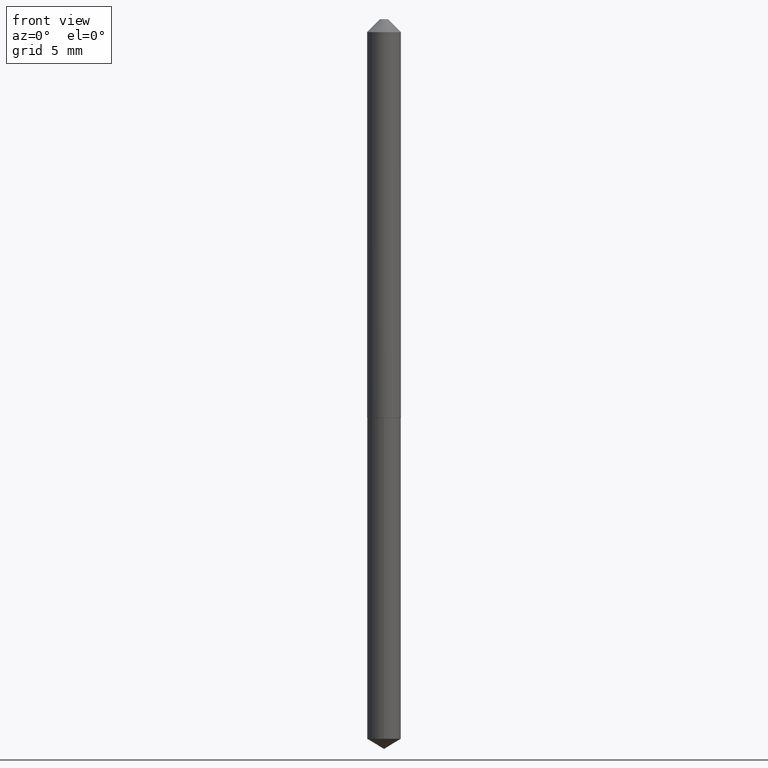
[diagram: clean part render]
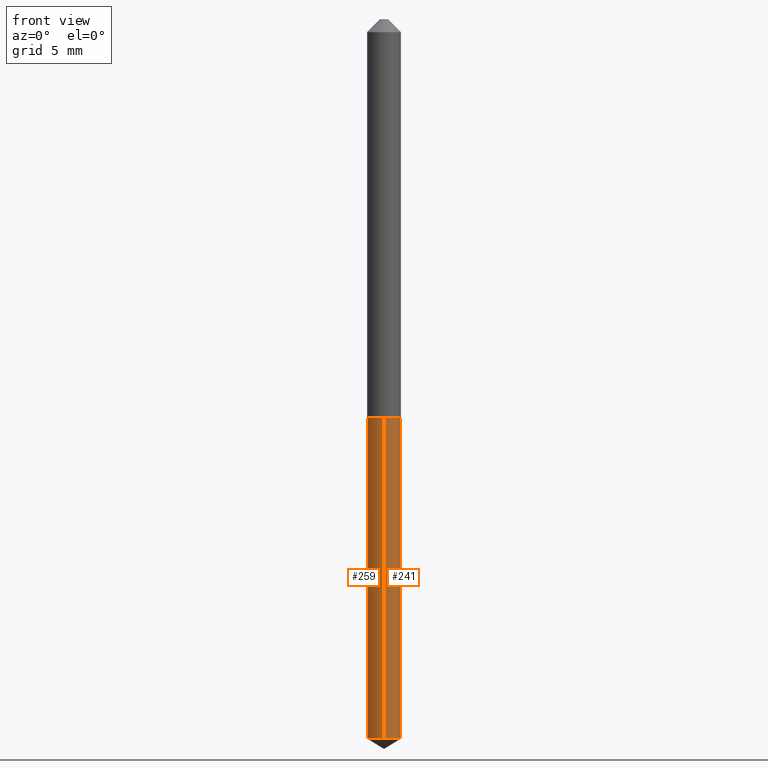
[diagram: same view with one multi-face feature highlighted, each face labeled with its STEP entity id]
A machine part, front view. The highlighted faces form ONE feature: a constant-radius fillet chain: 2 tangent blend faces with common blend radius 1.0287 mm. The faces share edges in the B-rep.
Their STEP definitions:
[1] entity #241 (Cylinder):
#1 = DIRECTION ( 'NONE',  ( -2.445381996269864290E-29, 3.491605655582729130E-15, 1.000000000000000000 ) ) ;
#5 = CARTESIAN_POINT ( 'NONE',  ( -2.828099884462704633E-16, -0.04050000000000333888, -0.9559999999999997389 ) ) ;
#17 = CARTESIAN_POINT ( 'NONE',  ( 2.877698079828828870E-16, 0.04049999999999666367, -0.9559999999999999609 ) ) ;
#32 = ORIENTED_EDGE ( 'NONE', *, *, #264, .F. ) ;
#35 = AXIS2_PLACEMENT_3D ( 'NONE', #101, #202, #320 ) ;
#55 = CYLINDRICAL_SURFACE ( 'NONE', #193, 0.04050000000000000128 ) ;
#58 = DIRECTION ( 'NONE',  ( -2.445381996269864010E-29, 3.491605655582729130E-15, 1.000000000000000000 ) ) ;
#73 = CIRCLE ( 'NONE', #175, 0.04050000000000000128 ) ;
#83 = FACE_OUTER_BOUND ( 'NONE', #271, .T. ) ;
#90 = CARTESIAN_POINT ( 'NONE',  ( -2.828099884462704633E-16, -0.04050000000000333888, -0.9559999999999997389 ) ) ;
#95 = VERTEX_POINT ( 'NONE', #112 ) ;
#96 = ORIENTED_EDGE ( 'NONE', *, *, #165, .T. ) ;
#101 = CARTESIAN_POINT ( 'NONE',  ( 4.219993467279741318E-29, -6.025223332874383434E-15, -1.725665144929383610 ) ) ;
#109 = CARTESIAN_POINT ( 'NONE',  ( -2.828099884462515800E-16, -0.04050000000000603118, -1.725665144929383388 ) ) ;
#112 = CARTESIAN_POINT ( 'NONE',  ( 2.877698079828827884E-16, 0.04049999999999397138, -1.725665144929384054 ) ) ;
#144 = VERTEX_POINT ( 'NONE', #5 ) ;
#147 = EDGE_CURVE ( 'NONE', #144, #159, #73, .T. ) ;
#157 = CIRCLE ( 'NONE', #35, 0.04050000000000000128 ) ;
#159 = VERTEX_POINT ( 'NONE', #17 ) ;
#165 = EDGE_CURVE ( 'NONE', #308, #95, #157, .T. ) ;
#175 = AXIS2_PLACEMENT_3D ( 'NONE', #344, #284, #194 ) ;
#177 = DIRECTION ( 'NONE',  ( -2.445381996269864010E-29, 3.491605655582729130E-15, 1.000000000000000000 ) ) ;
#183 = CARTESIAN_POINT ( 'NONE',  ( 2.877698079828639051E-16, 0.04049999999999666367, -0.9559999999999999609 ) ) ;
#193 = AXIS2_PLACEMENT_3D ( 'NONE', #244, #1, #247 ) ;
#194 = DIRECTION ( 'NONE',  ( -6.982962677686267499E-15, -1.000000000000000000, 3.372651844029954459E-15 ) ) ;
#202 = DIRECTION ( 'NONE',  ( -2.445381996269864290E-29, 3.491605655582729130E-15, 1.000000000000000000 ) ) ;
#241 = ADVANCED_FACE ( 'NONE', ( #83 ), #55, .T. ) ;
#244 = CARTESIAN_POINT ( 'NONE',  ( 2.337868178712989965E-29, -3.337856159934046563E-15, -0.9559999999999998499 ) ) ;
#247 = DIRECTION ( 'NONE',  ( -6.982962677686267499E-15, -1.000000000000000000, 3.372651844029954459E-15 ) ) ;
#257 = VECTOR ( 'NONE', #58, 39.37007874015748143 ) ;
#264 = EDGE_CURVE ( 'NONE', #308, #144, #360, .T. ) ;
#271 = EDGE_LOOP ( 'NONE', ( #96, #343, #312, #32 ) ) ;
#284 = DIRECTION ( 'NONE',  ( -2.445381996269864290E-29, 3.491605655582729130E-15, 1.000000000000000000 ) ) ;
#287 = VECTOR ( 'NONE', #177, 39.37007874015748143 ) ;
#308 = VERTEX_POINT ( 'NONE', #109 ) ;
#312 = ORIENTED_EDGE ( 'NONE', *, *, #147, .F. ) ;
#315 = EDGE_CURVE ( 'NONE', #95, #159, #352, .T. ) ;
#320 = DIRECTION ( 'NONE',  ( -6.982962677686267499E-15, -1.000000000000000000, 6.745303688059908918E-15 ) ) ;
#343 = ORIENTED_EDGE ( 'NONE', *, *, #315, .T. ) ;
#344 = CARTESIAN_POINT ( 'NONE',  ( 2.337868178712989965E-29, -3.337856159934046563E-15, -0.9559999999999998499 ) ) ;
#352 = LINE ( 'NONE', #183, #287 ) ;
#360 = LINE ( 'NONE', #90, #257 ) ;
[2] entity #259 (Cylinder):
#5 = CARTESIAN_POINT ( 'NONE',  ( -2.828099884462704633E-16, -0.04050000000000333888, -0.9559999999999997389 ) ) ;
#17 = CARTESIAN_POINT ( 'NONE',  ( 2.877698079828828870E-16, 0.04049999999999666367, -0.9559999999999999609 ) ) ;
#19 = CARTESIAN_POINT ( 'NONE',  ( 2.337868178712989965E-29, -3.337856159934046563E-15, -0.9559999999999998499 ) ) ;
#43 = ORIENTED_EDGE ( 'NONE', *, *, #315, .F. ) ;
#52 = DIRECTION ( 'NONE',  ( -2.445381996269864290E-29, 3.491605655582729130E-15, 1.000000000000000000 ) ) ;
#58 = DIRECTION ( 'NONE',  ( -2.445381996269864010E-29, 3.491605655582729130E-15, 1.000000000000000000 ) ) ;
#60 = DIRECTION ( 'NONE',  ( -6.982962677686267499E-15, -1.000000000000000000, 6.745303688059908918E-15 ) ) ;
#63 = ORIENTED_EDGE ( 'NONE', *, *, #304, .F. ) ;
#79 = ORIENTED_EDGE ( 'NONE', *, *, #264, .T. ) ;
#90 = CARTESIAN_POINT ( 'NONE',  ( -2.828099884462704633E-16, -0.04050000000000333888, -0.9559999999999997389 ) ) ;
#92 = EDGE_CURVE ( 'NONE', #95, #308, #321, .T. ) ;
#94 = CARTESIAN_POINT ( 'NONE',  ( 4.219993467279741318E-29, -6.025223332874383434E-15, -1.725665144929383610 ) ) ;
#95 = VERTEX_POINT ( 'NONE', #112 ) ;
#109 = CARTESIAN_POINT ( 'NONE',  ( -2.828099884462515800E-16, -0.04050000000000603118, -1.725665144929383388 ) ) ;
#111 = DIRECTION ( 'NONE',  ( -2.445381996269864290E-29, 3.491605655582729130E-15, 1.000000000000000000 ) ) ;
#112 = CARTESIAN_POINT ( 'NONE',  ( 2.877698079828827884E-16, 0.04049999999999397138, -1.725665144929384054 ) ) ;
#144 = VERTEX_POINT ( 'NONE', #5 ) ;
#159 = VERTEX_POINT ( 'NONE', #17 ) ;
#167 = AXIS2_PLACEMENT_3D ( 'NONE', #94, #384, #60 ) ;
#177 = DIRECTION ( 'NONE',  ( -2.445381996269864010E-29, 3.491605655582729130E-15, 1.000000000000000000 ) ) ;
#180 = FACE_OUTER_BOUND ( 'NONE', #293, .T. ) ;
#183 = CARTESIAN_POINT ( 'NONE',  ( 2.877698079828639051E-16, 0.04049999999999666367, -0.9559999999999999609 ) ) ;
#201 = ORIENTED_EDGE ( 'NONE', *, *, #92, .T. ) ;
#257 = VECTOR ( 'NONE', #58, 39.37007874015748143 ) ;
#259 = ADVANCED_FACE ( 'NONE', ( #180 ), #326, .T. ) ;
#260 = AXIS2_PLACEMENT_3D ( 'NONE', #381, #111, #270 ) ;
#262 = DIRECTION ( 'NONE',  ( -6.982962677686267499E-15, -1.000000000000000000, 3.372651844029954459E-15 ) ) ;
#264 = EDGE_CURVE ( 'NONE', #308, #144, #360, .T. ) ;
#270 = DIRECTION ( 'NONE',  ( -6.982962677686267499E-15, -1.000000000000000000, 3.372651844029954459E-15 ) ) ;
#287 = VECTOR ( 'NONE', #177, 39.37007874015748143 ) ;
#293 = EDGE_LOOP ( 'NONE', ( #43, #201, #79, #63 ) ) ;
#304 = EDGE_CURVE ( 'NONE', #159, #144, #347, .T. ) ;
#308 = VERTEX_POINT ( 'NONE', #109 ) ;
#315 = EDGE_CURVE ( 'NONE', #95, #159, #352, .T. ) ;
#321 = CIRCLE ( 'NONE', #167, 0.04050000000000000128 ) ;
#326 = CYLINDRICAL_SURFACE ( 'NONE', #260, 0.04050000000000000128 ) ;
#347 = CIRCLE ( 'NONE', #371, 0.04050000000000000128 ) ;
#352 = LINE ( 'NONE', #183, #287 ) ;
#360 = LINE ( 'NONE', #90, #257 ) ;
#371 = AXIS2_PLACEMENT_3D ( 'NONE', #19, #52, #262 ) ;
#381 = CARTESIAN_POINT ( 'NONE',  ( 2.337868178712989965E-29, -3.337856159934046563E-15, -0.9559999999999998499 ) ) ;
#384 = DIRECTION ( 'NONE',  ( -2.445381996269864290E-29, 3.491605655582729130E-15, 1.000000000000000000 ) ) ;